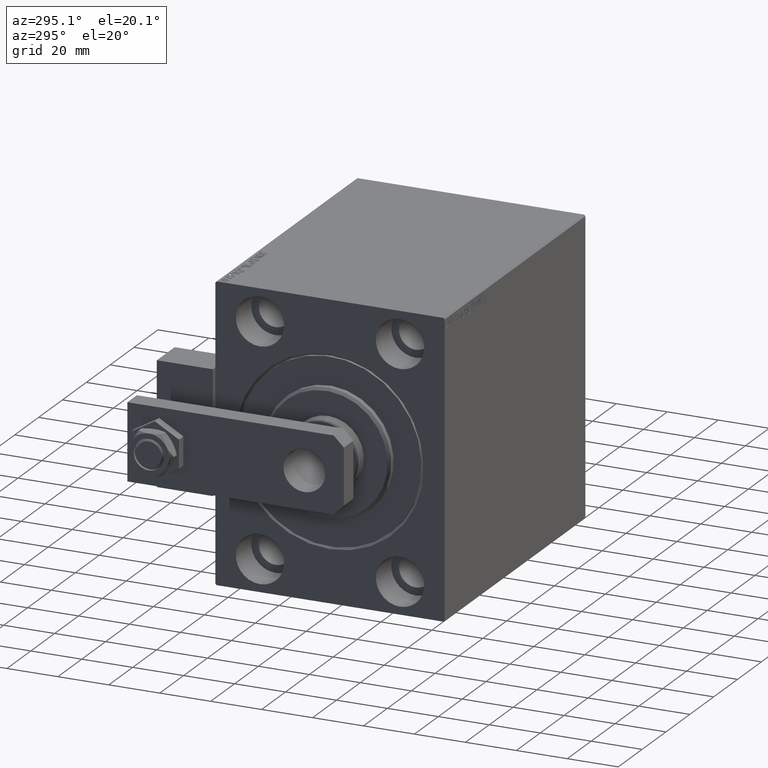
[diagram: clean part render]
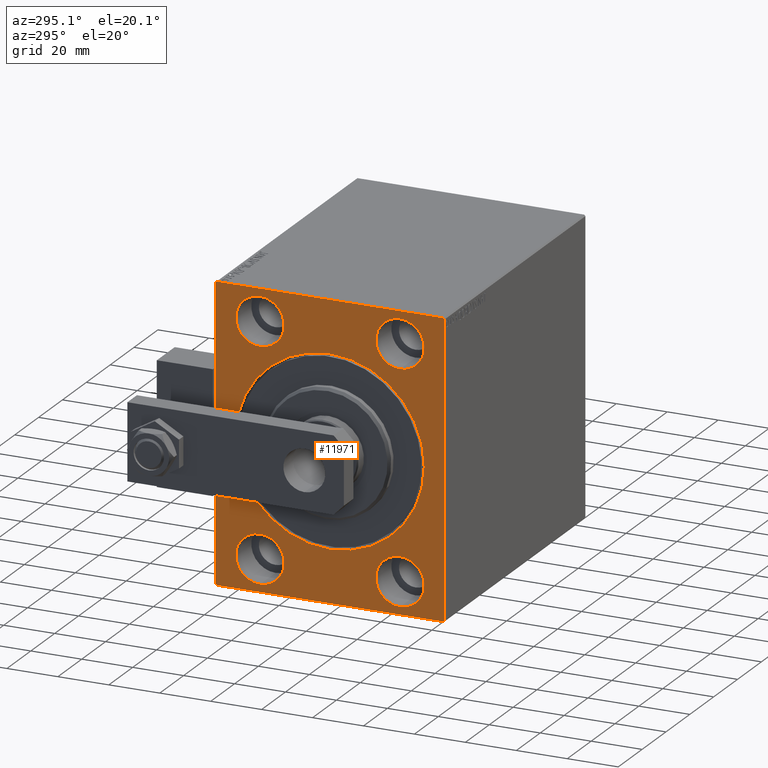
[diagram: same view with one face highlighted and labeled with its STEP entity id]
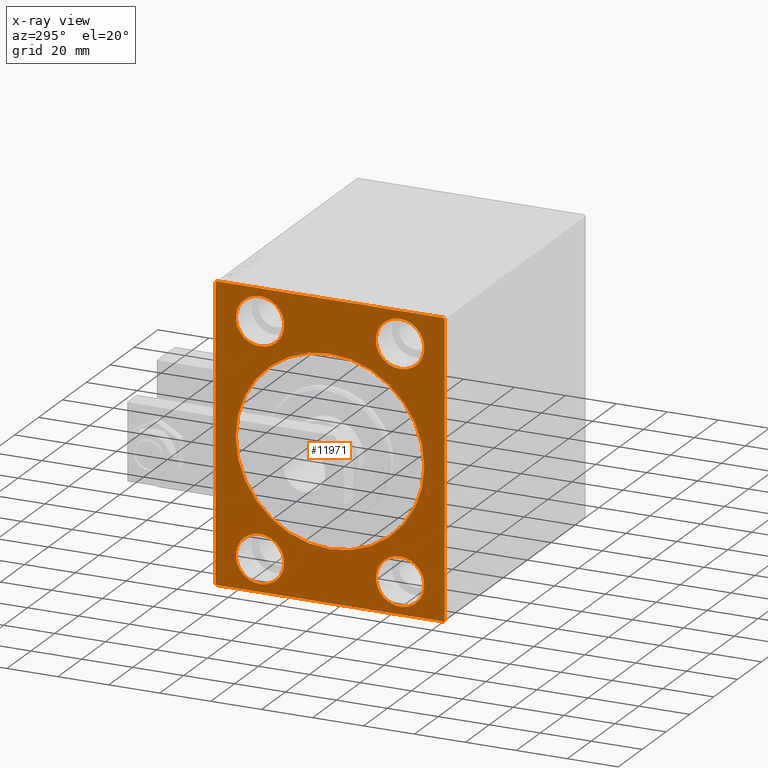
[diagram: x-ray of the same camera — body ghosted, the highlighted face saturated]
A machine part, auxiliary view. The second image highlights one B-rep face of the part: STEP entity #11971.
The next image is the same camera in x-ray: the body ghosted, the highlighted face saturated — about 0% of this face is hidden behind the body in this view.
In plain terms, the highlighted planar face has unit normal (1, 0, 0).
Its self-contained STEP definition (entity closure, byte-faithful):
#253 = EDGE_CURVE ( 'NONE', #35404, #40875, #1538, .T. ) ;
#1444 = CARTESIAN_POINT ( 'NONE',  ( 0.000000000000000000, 0.000000000000000000, 37.00000000000000711 ) ) ;
#1538 = LINE ( 'NONE', #24214, #22639 ) ;
#1865 = CARTESIAN_POINT ( 'NONE',  ( 0.000000000000000000, -44.50000000000002842, -57.50000000000000711 ) ) ;
#2475 = CIRCLE ( 'NONE', #29653, 9.500000000000001776 ) ;
#2746 = CARTESIAN_POINT ( 'NONE',  ( 0.000000000000000000, -27.49999999999998934, 54.50000000000000711 ) ) ;
#3135 = CARTESIAN_POINT ( 'NONE',  ( 0.000000000000000000, 0.000000000000000000, 0.000000000000000000 ) ) ;
#3813 = CARTESIAN_POINT ( 'NONE',  ( 0.000000000000000000, 27.50000000000001066, 35.50000000000000711 ) ) ;
#3883 = VERTEX_POINT ( 'NONE', #42131 ) ;
#3896 = EDGE_CURVE ( 'NONE', #41055, #4258, #15337, .T. ) ;
#4258 = VERTEX_POINT ( 'NONE', #13609 ) ;
#4393 = CARTESIAN_POINT ( 'NONE',  ( 0.000000000000000000, -45.00000000000000000, -57.00000000000003553 ) ) ;
#4820 = DIRECTION ( 'NONE',  ( 0.000000000000000000, 0.000000000000000000, 1.000000000000000000 ) ) ;
#4979 = DIRECTION ( 'NONE',  ( -1.000000000000000000, 0.000000000000000000, 0.000000000000000000 ) ) ;
#5375 = EDGE_LOOP ( 'NONE', ( #45250, #25203 ) ) ;
#5871 = CARTESIAN_POINT ( 'NONE',  ( 0.000000000000000000, -27.49999999999998934, 35.50000000000000711 ) ) ;
#7208 = CARTESIAN_POINT ( 'NONE',  ( 0.000000000000000000, -45.00000000000000000, 57.49999999999999289 ) ) ;
#7282 = CIRCLE ( 'NONE', #21284, 9.500000000000001776 ) ;
#7377 = CARTESIAN_POINT ( 'NONE',  ( 0.000000000000000000, 44.50000000000000000, 57.50000000000000711 ) ) ;
#7436 = DIRECTION ( 'NONE',  ( -0.000000000000000000, 0.7071067811865671127, -0.7071067811865279218 ) ) ;
#7685 = ORIENTED_EDGE ( 'NONE', *, *, #20553, .F. ) ;
#8008 = DIRECTION ( 'NONE',  ( 0.000000000000000000, 0.000000000000000000, -1.000000000000000000 ) ) ;
#8689 = ORIENTED_EDGE ( 'NONE', *, *, #35180, .F. ) ;
#9418 = CARTESIAN_POINT ( 'NONE',  ( 0.000000000000000000, 0.000000000000000000, 0.000000000000000000 ) ) ;
#9917 = ORIENTED_EDGE ( 'NONE', *, *, #253, .F. ) ;
#9934 = CARTESIAN_POINT ( 'NONE',  ( 0.000000000000000000, -27.49999999999998934, 45.00000000000000711 ) ) ;
#10429 = VECTOR ( 'NONE', #39335, 1000.000000000000000 ) ;
#10564 = CARTESIAN_POINT ( 'NONE',  ( 0.000000000000000000, 44.50000000000000000, 57.50000000000000711 ) ) ;
#11033 = CARTESIAN_POINT ( 'NONE',  ( 0.000000000000000000, 27.49999999999998934, -44.99999999999998579 ) ) ;
#11163 = CARTESIAN_POINT ( 'NONE',  ( 0.000000000000000000, -44.50000000000002842, -57.50000000000000711 ) ) ;
#11245 = DIRECTION ( 'NONE',  ( 0.000000000000000000, 0.000000000000000000, -1.000000000000000000 ) ) ;
#11772 = LINE ( 'NONE', #38879, #35077 ) ;
#11781 = VECTOR ( 'NONE', #18089, 1000.000000000000114 ) ;
#11971 = ADVANCED_FACE ( 'NONE', ( #38732, #27612, #19113, #27107, #31753, #26851 ), #42600, .F. ) ;
#12100 = EDGE_CURVE ( 'NONE', #35404, #3883, #23989, .T. ) ;
#12235 = LINE ( 'NONE', #31846, #10429 ) ;
#12979 = DIRECTION ( 'NONE',  ( 0.000000000000000000, 0.000000000000000000, 1.000000000000000000 ) ) ;
#13034 = VERTEX_POINT ( 'NONE', #33042 ) ;
#13398 = CARTESIAN_POINT ( 'NONE',  ( 0.000000000000000000, 45.00000000000000000, 57.50000000000000711 ) ) ;
#13609 = CARTESIAN_POINT ( 'NONE',  ( 0.000000000000000000, 27.50000000000001066, 54.50000000000000711 ) ) ;
#13645 = EDGE_LOOP ( 'NONE', ( #14404, #47869, #37264, #19342, #9917, #31120, #14205, #20698 ) ) ;
#13738 = DIRECTION ( 'NONE',  ( 0.000000000000000000, 0.000000000000000000, 1.000000000000000000 ) ) ;
#13821 = AXIS2_PLACEMENT_3D ( 'NONE', #29795, #38554, #18676 ) ;
#14094 = ORIENTED_EDGE ( 'NONE', *, *, #26607, .F. ) ;
#14205 = ORIENTED_EDGE ( 'NONE', *, *, #24157, .F. ) ;
#14404 = ORIENTED_EDGE ( 'NONE', *, *, #22470, .F. ) ;
#14541 = AXIS2_PLACEMENT_3D ( 'NONE', #18637, #45740, #26371 ) ;
#14857 = EDGE_CURVE ( 'NONE', #32064, #19578, #48631, .T. ) ;
#14988 = DIRECTION ( 'NONE',  ( 1.000000000000000000, 0.000000000000000000, 0.000000000000000000 ) ) ;
#15095 = AXIS2_PLACEMENT_3D ( 'NONE', #20292, #48153, #4820 ) ;
#15337 = CIRCLE ( 'NONE', #14541, 9.500000000000001776 ) ;
#16418 = EDGE_CURVE ( 'NONE', #4258, #41055, #16746, .T. ) ;
#16746 = CIRCLE ( 'NONE', #15095, 9.500000000000001776 ) ;
#17666 = DIRECTION ( 'NONE',  ( -1.000000000000000000, 0.000000000000000000, 0.000000000000000000 ) ) ;
#17954 = VECTOR ( 'NONE', #28381, 1000.000000000000000 ) ;
#18043 = CARTESIAN_POINT ( 'NONE',  ( 0.000000000000000000, -45.00000000000000000, 56.99999999999999289 ) ) ;
#18089 = DIRECTION ( 'NONE',  ( -0.000000000000000000, -0.7071067811865474617, 0.7071067811865474617 ) ) ;
#18192 = VERTEX_POINT ( 'NONE', #21893 ) ;
#18393 = ORIENTED_EDGE ( 'NONE', *, *, #43568, .F. ) ;
#18487 = AXIS2_PLACEMENT_3D ( 'NONE', #9418, #37287, #21279 ) ;
#18548 = CARTESIAN_POINT ( 'NONE',  ( 0.000000000000000000, 4.531193156845207581E-15, -37.00000000000000711 ) ) ;
#18637 = CARTESIAN_POINT ( 'NONE',  ( 0.000000000000000000, 27.50000000000001066, 45.00000000000000711 ) ) ;
#18676 = DIRECTION ( 'NONE',  ( 0.000000000000000000, 0.000000000000000000, 1.000000000000000000 ) ) ;
#19113 = FACE_BOUND ( 'NONE', #28746, .T. ) ;
#19330 = EDGE_CURVE ( 'NONE', #19578, #32064, #40746, .T. ) ;
#19342 = ORIENTED_EDGE ( 'NONE', *, *, #29079, .T. ) ;
#19529 = VERTEX_POINT ( 'NONE', #18043 ) ;
#19578 = VERTEX_POINT ( 'NONE', #18548 ) ;
#19611 = AXIS2_PLACEMENT_3D ( 'NONE', #3135, #14988, #8008 ) ;
#19696 = AXIS2_PLACEMENT_3D ( 'NONE', #48836, #4979, #13738 ) ;
#20121 = CARTESIAN_POINT ( 'NONE',  ( 0.000000000000000000, 45.00000000000001421, -57.00000000000000711 ) ) ;
#20292 = CARTESIAN_POINT ( 'NONE',  ( 0.000000000000000000, 27.50000000000001066, 45.00000000000000711 ) ) ;
#20553 = EDGE_CURVE ( 'NONE', #35598, #47524, #28471, .T. ) ;
#20604 = DIRECTION ( 'NONE',  ( 0.000000000000000000, -1.206764157201257045E-16, 1.000000000000000000 ) ) ;
#20698 = ORIENTED_EDGE ( 'NONE', *, *, #50153, .T. ) ;
#21064 = EDGE_CURVE ( 'NONE', #19529, #13034, #11772, .T. ) ;
#21279 = DIRECTION ( 'NONE',  ( 0.000000000000000000, 0.000000000000000000, -1.000000000000000000 ) ) ;
#21284 = AXIS2_PLACEMENT_3D ( 'NONE', #9934, #17666, #41416 ) ;
#21893 = CARTESIAN_POINT ( 'NONE',  ( 0.000000000000000000, 27.49999999999998934, -35.49999999999998579 ) ) ;
#22091 = DIRECTION ( 'NONE',  ( 1.000000000000000000, 0.000000000000000000, 0.000000000000000000 ) ) ;
#22470 = EDGE_CURVE ( 'NONE', #19529, #45513, #42564, .T. ) ;
#22639 = VECTOR ( 'NONE', #20604, 1000.000000000000000 ) ;
#22691 = DIRECTION ( 'NONE',  ( 0.000000000000000000, 0.000000000000000000, -1.000000000000000000 ) ) ;
#23012 = CIRCLE ( 'NONE', #19696, 9.500000000000001776 ) ;
#23144 = DIRECTION ( 'NONE',  ( 0.000000000000000000, 0.000000000000000000, 1.000000000000000000 ) ) ;
#23989 = LINE ( 'NONE', #20121, #17954 ) ;
#24157 = EDGE_CURVE ( 'NONE', #44070, #3883, #12235, .T. ) ;
#24165 = EDGE_LOOP ( 'NONE', ( #43254, #7685 ) ) ;
#24214 = CARTESIAN_POINT ( 'NONE',  ( 0.000000000000000000, 45.00000000000001421, -57.50000000000000711 ) ) ;
#24594 = VECTOR ( 'NONE', #7436, 1000.000000000000000 ) ;
#25187 = VECTOR ( 'NONE', #22691, 1000.000000000000000 ) ;
#25203 = ORIENTED_EDGE ( 'NONE', *, *, #3896, .F. ) ;
#25569 = EDGE_LOOP ( 'NONE', ( #14094, #18393 ) ) ;
#26370 = AXIS2_PLACEMENT_3D ( 'NONE', #29601, #22091, #11245 ) ;
#26371 = DIRECTION ( 'NONE',  ( 0.000000000000000000, 0.000000000000000000, 1.000000000000000000 ) ) ;
#26607 = EDGE_CURVE ( 'NONE', #18192, #30435, #34412, .T. ) ;
#26851 = FACE_OUTER_BOUND ( 'NONE', #13645, .T. ) ;
#27107 = FACE_BOUND ( 'NONE', #5375, .T. ) ;
#27307 = CIRCLE ( 'NONE', #42956, 9.500000000000001776 ) ;
#27427 = ORIENTED_EDGE ( 'NONE', *, *, #32102, .F. ) ;
#27612 = FACE_BOUND ( 'NONE', #25569, .T. ) ;
#28381 = DIRECTION ( 'NONE',  ( 0.000000000000000000, -0.7071067811865279218, -0.7071067811865671127 ) ) ;
#28461 = CARTESIAN_POINT ( 'NONE',  ( 0.000000000000000000, -27.49999999999998934, 45.00000000000000711 ) ) ;
#28471 = CIRCLE ( 'NONE', #47397, 9.500000000000001776 ) ;
#28746 = EDGE_LOOP ( 'NONE', ( #27427, #8689 ) ) ;
#29079 = EDGE_CURVE ( 'NONE', #29429, #40875, #45917, .T. ) ;
#29429 = VERTEX_POINT ( 'NONE', #7377 ) ;
#29601 = CARTESIAN_POINT ( 'NONE',  ( 0.000000000000000000, 0.000000000000000000, 0.000000000000000000 ) ) ;
#29653 = AXIS2_PLACEMENT_3D ( 'NONE', #28461, #43942, #12979 ) ;
#29795 = CARTESIAN_POINT ( 'NONE',  ( 0.000000000000000000, 27.49999999999998934, -44.99999999999998579 ) ) ;
#30232 = LINE ( 'NONE', #1865, #11781 ) ;
#30435 = VERTEX_POINT ( 'NONE', #41528 ) ;
#31120 = ORIENTED_EDGE ( 'NONE', *, *, #12100, .T. ) ;
#31147 = DIRECTION ( 'NONE',  ( -0.000000000000000000, 0.7071067811865672237, 0.7071067811865279218 ) ) ;
#31753 = FACE_BOUND ( 'NONE', #24165, .T. ) ;
#31846 = CARTESIAN_POINT ( 'NONE',  ( 0.000000000000000000, -45.00000000000000000, -57.50000000000000711 ) ) ;
#32064 = VERTEX_POINT ( 'NONE', #1444 ) ;
#32102 = EDGE_CURVE ( 'NONE', #41175, #34700, #7282, .T. ) ;
#32731 = CARTESIAN_POINT ( 'NONE',  ( 0.000000000000000000, 45.00000000000001421, -57.00000000000000711 ) ) ;
#33042 = CARTESIAN_POINT ( 'NONE',  ( 0.000000000000000000, -44.49999999999994316, 57.49999999999999289 ) ) ;
#33426 = CARTESIAN_POINT ( 'NONE',  ( 0.000000000000000000, -27.50000000000000000, -54.49999999999998579 ) ) ;
#34075 = EDGE_CURVE ( 'NONE', #47524, #35598, #23012, .T. ) ;
#34256 = ORIENTED_EDGE ( 'NONE', *, *, #14857, .T. ) ;
#34412 = CIRCLE ( 'NONE', #13821, 9.500000000000001776 ) ;
#34700 = VERTEX_POINT ( 'NONE', #5871 ) ;
#35077 = VECTOR ( 'NONE', #31147, 1000.000000000000000 ) ;
#35180 = EDGE_CURVE ( 'NONE', #34700, #41175, #2475, .T. ) ;
#35404 = VERTEX_POINT ( 'NONE', #32731 ) ;
#35598 = VERTEX_POINT ( 'NONE', #33426 ) ;
#37264 = ORIENTED_EDGE ( 'NONE', *, *, #40845, .F. ) ;
#37287 = DIRECTION ( 'NONE',  ( 1.000000000000000000, 0.000000000000000000, 0.000000000000000000 ) ) ;
#37480 = CARTESIAN_POINT ( 'NONE',  ( 0.000000000000000000, -27.50000000000000000, -35.49999999999998579 ) ) ;
#38554 = DIRECTION ( 'NONE',  ( -1.000000000000000000, 0.000000000000000000, 0.000000000000000000 ) ) ;
#38732 = FACE_BOUND ( 'NONE', #45703, .T. ) ;
#38879 = CARTESIAN_POINT ( 'NONE',  ( 0.000000000000000000, -45.00000000000000000, 56.99999999999999289 ) ) ;
#39335 = DIRECTION ( 'NONE',  ( 0.000000000000000000, 1.000000000000000000, 0.000000000000000000 ) ) ;
#39668 = ORIENTED_EDGE ( 'NONE', *, *, #19330, .T. ) ;
#40246 = LINE ( 'NONE', #13398, #47944 ) ;
#40746 = CIRCLE ( 'NONE', #18487, 37.00000000000000711 ) ;
#40845 = EDGE_CURVE ( 'NONE', #29429, #13034, #40246, .T. ) ;
#40847 = CARTESIAN_POINT ( 'NONE',  ( 0.000000000000000000, -27.50000000000000000, -44.99999999999998579 ) ) ;
#40875 = VERTEX_POINT ( 'NONE', #49001 ) ;
#41055 = VERTEX_POINT ( 'NONE', #3813 ) ;
#41175 = VERTEX_POINT ( 'NONE', #2746 ) ;
#41416 = DIRECTION ( 'NONE',  ( 0.000000000000000000, 0.000000000000000000, 1.000000000000000000 ) ) ;
#41528 = CARTESIAN_POINT ( 'NONE',  ( 0.000000000000000000, 27.49999999999998934, -54.49999999999998579 ) ) ;
#42131 = CARTESIAN_POINT ( 'NONE',  ( 0.000000000000000000, 44.50000000000001421, -57.50000000000000711 ) ) ;
#42564 = LINE ( 'NONE', #7208, #25187 ) ;
#42600 = PLANE ( 'NONE',  #19611 ) ;
#42956 = AXIS2_PLACEMENT_3D ( 'NONE', #11033, #46138, #23144 ) ;
#43254 = ORIENTED_EDGE ( 'NONE', *, *, #34075, .F. ) ;
#43568 = EDGE_CURVE ( 'NONE', #30435, #18192, #27307, .T. ) ;
#43942 = DIRECTION ( 'NONE',  ( -1.000000000000000000, 0.000000000000000000, 0.000000000000000000 ) ) ;
#44070 = VERTEX_POINT ( 'NONE', #11163 ) ;
#45250 = ORIENTED_EDGE ( 'NONE', *, *, #16418, .F. ) ;
#45513 = VERTEX_POINT ( 'NONE', #4393 ) ;
#45703 = EDGE_LOOP ( 'NONE', ( #34256, #39668 ) ) ;
#45740 = DIRECTION ( 'NONE',  ( -1.000000000000000000, 0.000000000000000000, 0.000000000000000000 ) ) ;
#45917 = LINE ( 'NONE', #10564, #24594 ) ;
#46138 = DIRECTION ( 'NONE',  ( -1.000000000000000000, 0.000000000000000000, 0.000000000000000000 ) ) ;
#47397 = AXIS2_PLACEMENT_3D ( 'NONE', #40847, #48590, #49610 ) ;
#47524 = VERTEX_POINT ( 'NONE', #37480 ) ;
#47869 = ORIENTED_EDGE ( 'NONE', *, *, #21064, .T. ) ;
#47944 = VECTOR ( 'NONE', #48750, 1000.000000000000000 ) ;
#48153 = DIRECTION ( 'NONE',  ( -1.000000000000000000, 0.000000000000000000, 0.000000000000000000 ) ) ;
#48590 = DIRECTION ( 'NONE',  ( -1.000000000000000000, 0.000000000000000000, 0.000000000000000000 ) ) ;
#48631 = CIRCLE ( 'NONE', #26370, 37.00000000000000711 ) ;
#48750 = DIRECTION ( 'NONE',  ( 0.000000000000000000, -1.000000000000000000, -1.541976423090495387E-16 ) ) ;
#48836 = CARTESIAN_POINT ( 'NONE',  ( 0.000000000000000000, -27.50000000000000000, -44.99999999999998579 ) ) ;
#49001 = CARTESIAN_POINT ( 'NONE',  ( 0.000000000000000000, 45.00000000000000000, 57.00000000000000711 ) ) ;
#49610 = DIRECTION ( 'NONE',  ( 0.000000000000000000, 0.000000000000000000, 1.000000000000000000 ) ) ;
#50153 = EDGE_CURVE ( 'NONE', #44070, #45513, #30232, .T. ) ;